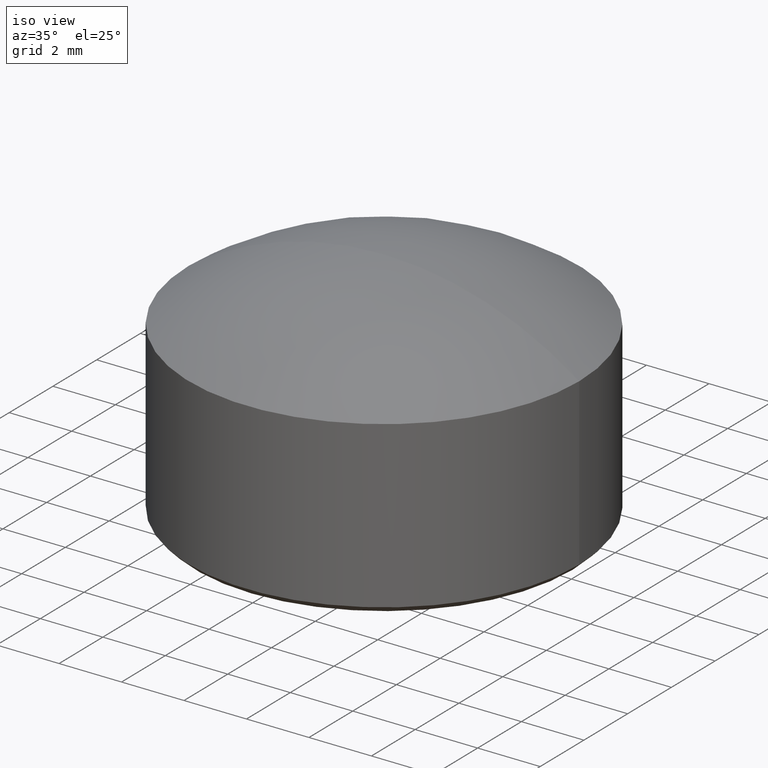
[diagram: clean part render]
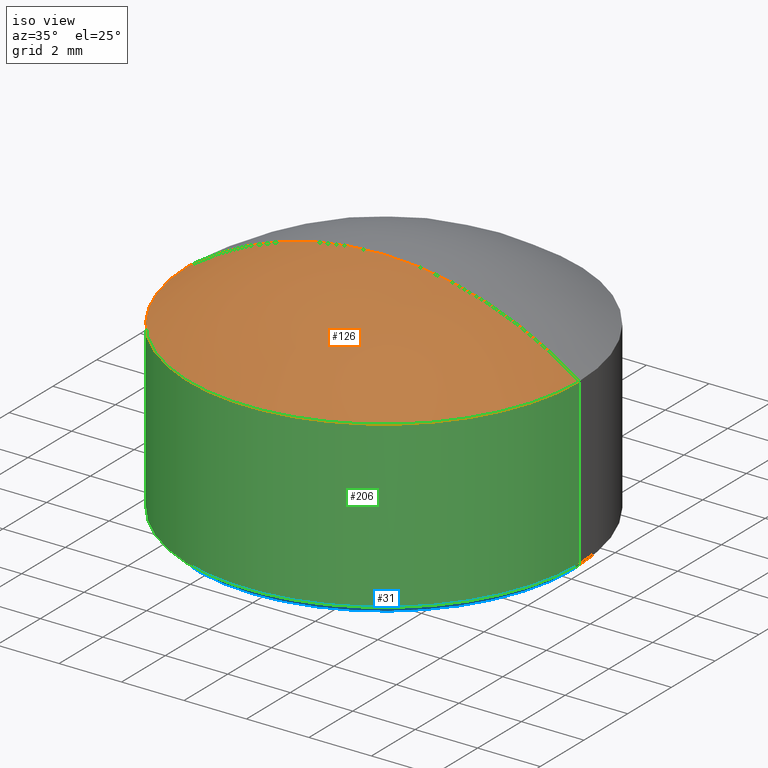
[diagram: same view with three faces highlighted in distinct colors, each labeled with its STEP entity id]
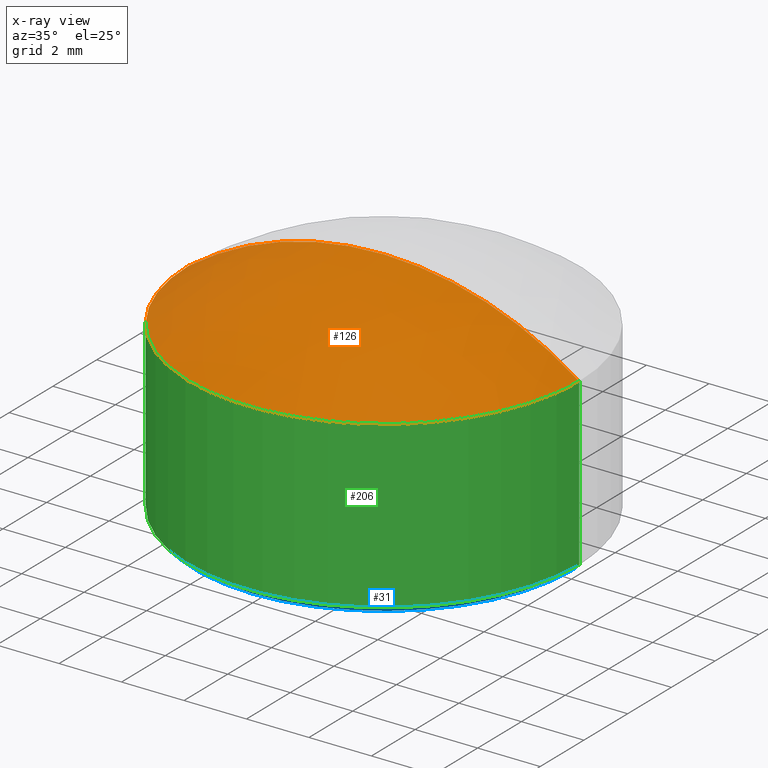
[diagram: x-ray of the same camera — body ghosted, the three highlighted faces saturated]
A machine part, iso view with three faces highlighted in distinct colors.
The next image is the same camera in x-ray (body ghosted, the three faces saturated) — at least one of them is partly hidden behind the body in this view.
Their STEP definitions:

[orange] entity #126 — the highlighted spherical surface has radius 10.7656 mm.
#10 = EDGE_CURVE ( 'NONE', #21, #160, #102, .T. ) ;
#21 = VERTEX_POINT ( 'NONE', #95 ) ;
#23 = CARTESIAN_POINT ( 'NONE',  ( 4.336808689942017736E-16, 0.000000000000000000, -3.265625000000002220 ) ) ;
#39 = DIRECTION ( 'NONE',  ( -1.000000000000000000, 0.000000000000000000, 0.000000000000000000 ) ) ;
#40 = DIRECTION ( 'NONE',  ( 0.000000000000000000, 1.000000000000000000, 0.000000000000000000 ) ) ;
#46 = CIRCLE ( 'NONE', #55, 10.76562500000000000 ) ;
#55 = AXIS2_PLACEMENT_3D ( 'NONE', #23, #156, #91 ) ;
#62 = CARTESIAN_POINT ( 'NONE',  ( 4.336808689942017736E-16, 0.000000000000000000, -3.265625000000002220 ) ) ;
#64 = SPHERICAL_SURFACE ( 'NONE', #112, 10.76562500000000000 ) ;
#77 = DIRECTION ( 'NONE',  ( -0.000000000000000000, -1.000000000000000000, 0.000000000000000000 ) ) ;
#83 = FACE_OUTER_BOUND ( 'NONE', #194, .T. ) ;
#87 = ORIENTED_EDGE ( 'NONE', *, *, #101, .T. ) ;
#91 = DIRECTION ( 'NONE',  ( 1.000000000000000000, -1.224646799147353207E-16, 0.000000000000000000 ) ) ;
#94 = CARTESIAN_POINT ( 'NONE',  ( 6.250000000000000000, 7.654042494670957606E-16, 5.500000000000000000 ) ) ;
#95 = CARTESIAN_POINT ( 'NONE',  ( -6.250000000000000000, 0.000000000000000000, 5.500000000000000000 ) ) ;
#100 = CIRCLE ( 'NONE', #119, 6.250000000000000000 ) ;
#101 = EDGE_CURVE ( 'NONE', #21, #145, #100, .T. ) ;
#102 = CIRCLE ( 'NONE', #199, 10.76562500000000000 ) ;
#103 = CARTESIAN_POINT ( 'NONE',  ( -2.255235408593345021E-16, 0.000000000000000000, 7.499999999999999112 ) ) ;
#112 = AXIS2_PLACEMENT_3D ( 'NONE', #62, #77, #39 ) ;
#118 = DIRECTION ( 'NONE',  ( 1.000000000000000000, 0.000000000000000000, 0.000000000000000000 ) ) ;
#119 = AXIS2_PLACEMENT_3D ( 'NONE', #192, #190, #118 ) ;
#123 = CARTESIAN_POINT ( 'NONE',  ( 4.336808689942017736E-16, 0.000000000000000000, -3.265625000000002220 ) ) ;
#126 = ADVANCED_FACE ( 'NONE', ( #83 ), #64, .T. ) ;
#140 = ORIENTED_EDGE ( 'NONE', *, *, #165, .T. ) ;
#142 = ORIENTED_EDGE ( 'NONE', *, *, #10, .F. ) ;
#145 = VERTEX_POINT ( 'NONE', #94 ) ;
#156 = DIRECTION ( 'NONE',  ( -1.224646799147353207E-16, -1.000000000000000000, -0.000000000000000000 ) ) ;
#160 = VERTEX_POINT ( 'NONE', #103 ) ;
#165 = EDGE_CURVE ( 'NONE', #145, #160, #46, .T. ) ;
#189 = DIRECTION ( 'NONE',  ( 0.000000000000000000, 0.000000000000000000, 1.000000000000000000 ) ) ;
#190 = DIRECTION ( 'NONE',  ( 0.000000000000000000, 0.000000000000000000, 1.000000000000000000 ) ) ;
#192 = CARTESIAN_POINT ( 'NONE',  ( 0.000000000000000000, 0.000000000000000000, 5.500000000000000000 ) ) ;
#194 = EDGE_LOOP ( 'NONE', ( #87, #140, #142 ) ) ;
#199 = AXIS2_PLACEMENT_3D ( 'NONE', #123, #40, #189 ) ;

[blue] entity #31 — the highlighted conical surface has half-angle 45 deg.
#3 = CARTESIAN_POINT ( 'NONE',  ( 6.250000000000000000, 0.000000000000000000, 0.2000000000000005107 ) ) ;
#7 = AXIS2_PLACEMENT_3D ( 'NONE', #179, #197, #32 ) ;
#13 = DIRECTION ( 'NONE',  ( -0.7071067811865489050, 8.659560562354951347E-17, 0.7071067811865460184 ) ) ;
#16 = LINE ( 'NONE', #3, #36 ) ;
#24 = ORIENTED_EDGE ( 'NONE', *, *, #70, .T. ) ;
#31 = ADVANCED_FACE ( 'NONE', ( #133 ), #38, .T. ) ;
#32 = DIRECTION ( 'NONE',  ( 1.000000000000000000, 0.000000000000000000, 0.000000000000000000 ) ) ;
#33 = DIRECTION ( 'NONE',  ( -0.000000000000000000, -0.000000000000000000, 1.000000000000000000 ) ) ;
#34 = CARTESIAN_POINT ( 'NONE',  ( 6.250000000000000000, 7.654042494670957606E-16, 0.2000000000000005107 ) ) ;
#36 = VECTOR ( 'NONE', #134, 1000.000000000000114 ) ;
#38 = CONICAL_SURFACE ( 'NONE', #120, 6.250000000000000000, 0.7853981633974503884 ) ;
#41 = DIRECTION ( 'NONE',  ( -0.000000000000000000, -0.000000000000000000, -1.000000000000000000 ) ) ;
#48 = ORIENTED_EDGE ( 'NONE', *, *, #60, .F. ) ;
#60 = EDGE_CURVE ( 'NONE', #121, #209, #76, .T. ) ;
#63 = EDGE_LOOP ( 'NONE', ( #104, #93, #24, #48 ) ) ;
#65 = AXIS2_PLACEMENT_3D ( 'NONE', #147, #41, #216 ) ;
#70 = EDGE_CURVE ( 'NONE', #125, #209, #16, .T. ) ;
#76 = CIRCLE ( 'NONE', #7, 6.250000000000000000 ) ;
#79 = LINE ( 'NONE', #122, #154 ) ;
#85 = EDGE_CURVE ( 'NONE', #125, #211, #198, .T. ) ;
#93 = ORIENTED_EDGE ( 'NONE', *, *, #85, .F. ) ;
#99 = CARTESIAN_POINT ( 'NONE',  ( -6.049999999999998934, 7.531577814756221078E-16, 0.000000000000000000 ) ) ;
#104 = ORIENTED_EDGE ( 'NONE', *, *, #186, .F. ) ;
#110 = CARTESIAN_POINT ( 'NONE',  ( -6.250000000000000000, 0.000000000000000000, 0.2000000000000005107 ) ) ;
#111 = CARTESIAN_POINT ( 'NONE',  ( 0.000000000000000000, 0.000000000000000000, 0.2000000000000005107 ) ) ;
#120 = AXIS2_PLACEMENT_3D ( 'NONE', #111, #33, #200 ) ;
#121 = VERTEX_POINT ( 'NONE', #110 ) ;
#122 = CARTESIAN_POINT ( 'NONE',  ( -6.250000000000000000, 7.654042494670957606E-16, 0.2000000000000005107 ) ) ;
#124 = CARTESIAN_POINT ( 'NONE',  ( 6.049999999999998934, 0.000000000000000000, 0.000000000000000000 ) ) ;
#125 = VERTEX_POINT ( 'NONE', #124 ) ;
#133 = FACE_OUTER_BOUND ( 'NONE', #63, .T. ) ;
#134 = DIRECTION ( 'NONE',  ( 0.7071067811865489050, 0.000000000000000000, 0.7071067811865460184 ) ) ;
#147 = CARTESIAN_POINT ( 'NONE',  ( 0.000000000000000000, 0.000000000000000000, 0.000000000000000000 ) ) ;
#154 = VECTOR ( 'NONE', #13, 1000.000000000000114 ) ;
#179 = CARTESIAN_POINT ( 'NONE',  ( 0.000000000000000000, 0.000000000000000000, 0.2000000000000005107 ) ) ;
#186 = EDGE_CURVE ( 'NONE', #211, #121, #79, .T. ) ;
#197 = DIRECTION ( 'NONE',  ( -0.000000000000000000, -0.000000000000000000, 1.000000000000000000 ) ) ;
#198 = CIRCLE ( 'NONE', #65, 6.049999999999998934 ) ;
#200 = DIRECTION ( 'NONE',  ( 1.000000000000000000, 0.000000000000000000, 0.000000000000000000 ) ) ;
#209 = VERTEX_POINT ( 'NONE', #34 ) ;
#211 = VERTEX_POINT ( 'NONE', #99 ) ;
#216 = DIRECTION ( 'NONE',  ( 1.000000000000000000, 0.000000000000000000, 0.000000000000000000 ) ) ;

[green] entity #206 — the highlighted cylindrical surface (partial cylindrical patch) has radius 6.25 mm, axis along (-0, -0, -1).
#4 = VECTOR ( 'NONE', #149, 1000.000000000000000 ) ;
#7 = AXIS2_PLACEMENT_3D ( 'NONE', #179, #197, #32 ) ;
#8 = LINE ( 'NONE', #141, #136 ) ;
#21 = VERTEX_POINT ( 'NONE', #95 ) ;
#32 = DIRECTION ( 'NONE',  ( 1.000000000000000000, 0.000000000000000000, 0.000000000000000000 ) ) ;
#34 = CARTESIAN_POINT ( 'NONE',  ( 6.250000000000000000, 7.654042494670957606E-16, 0.2000000000000005107 ) ) ;
#43 = EDGE_CURVE ( 'NONE', #145, #209, #163, .T. ) ;
#52 = CARTESIAN_POINT ( 'NONE',  ( 6.250000000000000000, 7.654042494670957606E-16, 5.500000000000000000 ) ) ;
#60 = EDGE_CURVE ( 'NONE', #121, #209, #76, .T. ) ;
#76 = CIRCLE ( 'NONE', #7, 6.250000000000000000 ) ;
#78 = ORIENTED_EDGE ( 'NONE', *, *, #203, .T. ) ;
#80 = EDGE_LOOP ( 'NONE', ( #107, #82, #78, #155 ) ) ;
#82 = ORIENTED_EDGE ( 'NONE', *, *, #101, .F. ) ;
#94 = CARTESIAN_POINT ( 'NONE',  ( 6.250000000000000000, 7.654042494670957606E-16, 5.500000000000000000 ) ) ;
#95 = CARTESIAN_POINT ( 'NONE',  ( -6.250000000000000000, 0.000000000000000000, 5.500000000000000000 ) ) ;
#100 = CIRCLE ( 'NONE', #119, 6.250000000000000000 ) ;
#101 = EDGE_CURVE ( 'NONE', #21, #145, #100, .T. ) ;
#106 = DIRECTION ( 'NONE',  ( -0.000000000000000000, -0.000000000000000000, -1.000000000000000000 ) ) ;
#107 = ORIENTED_EDGE ( 'NONE', *, *, #43, .F. ) ;
#110 = CARTESIAN_POINT ( 'NONE',  ( -6.250000000000000000, 0.000000000000000000, 0.2000000000000005107 ) ) ;
#115 = CARTESIAN_POINT ( 'NONE',  ( 0.000000000000000000, 0.000000000000000000, 5.500000000000000000 ) ) ;
#118 = DIRECTION ( 'NONE',  ( 1.000000000000000000, 0.000000000000000000, 0.000000000000000000 ) ) ;
#119 = AXIS2_PLACEMENT_3D ( 'NONE', #192, #190, #118 ) ;
#121 = VERTEX_POINT ( 'NONE', #110 ) ;
#127 = FACE_OUTER_BOUND ( 'NONE', #80, .T. ) ;
#136 = VECTOR ( 'NONE', #106, 1000.000000000000000 ) ;
#141 = CARTESIAN_POINT ( 'NONE',  ( -6.250000000000000000, 0.000000000000000000, 5.500000000000000000 ) ) ;
#145 = VERTEX_POINT ( 'NONE', #94 ) ;
#149 = DIRECTION ( 'NONE',  ( -0.000000000000000000, -0.000000000000000000, -1.000000000000000000 ) ) ;
#155 = ORIENTED_EDGE ( 'NONE', *, *, #60, .T. ) ;
#163 = LINE ( 'NONE', #52, #4 ) ;
#164 = DIRECTION ( 'NONE',  ( -0.000000000000000000, -0.000000000000000000, -1.000000000000000000 ) ) ;
#179 = CARTESIAN_POINT ( 'NONE',  ( 0.000000000000000000, 0.000000000000000000, 0.2000000000000005107 ) ) ;
#181 = AXIS2_PLACEMENT_3D ( 'NONE', #115, #164, #183 ) ;
#183 = DIRECTION ( 'NONE',  ( -1.000000000000000000, 0.000000000000000000, 0.000000000000000000 ) ) ;
#190 = DIRECTION ( 'NONE',  ( 0.000000000000000000, 0.000000000000000000, 1.000000000000000000 ) ) ;
#192 = CARTESIAN_POINT ( 'NONE',  ( 0.000000000000000000, 0.000000000000000000, 5.500000000000000000 ) ) ;
#197 = DIRECTION ( 'NONE',  ( -0.000000000000000000, -0.000000000000000000, 1.000000000000000000 ) ) ;
#203 = EDGE_CURVE ( 'NONE', #21, #121, #8, .T. ) ;
#206 = ADVANCED_FACE ( 'NONE', ( #127 ), #210, .T. ) ;
#209 = VERTEX_POINT ( 'NONE', #34 ) ;
#210 = CYLINDRICAL_SURFACE ( 'NONE', #181, 6.250000000000000000 ) ;